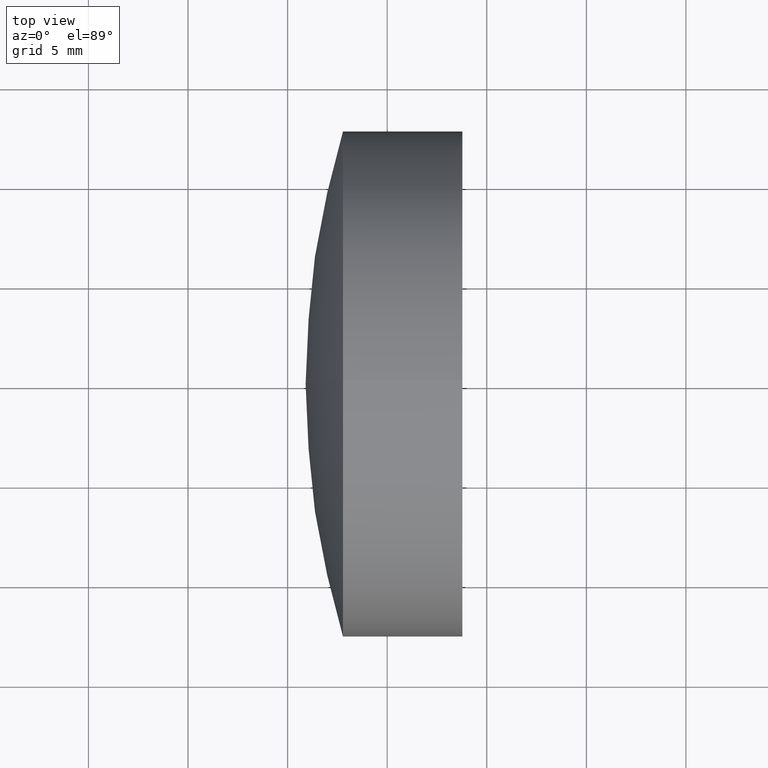
[diagram: clean part render]
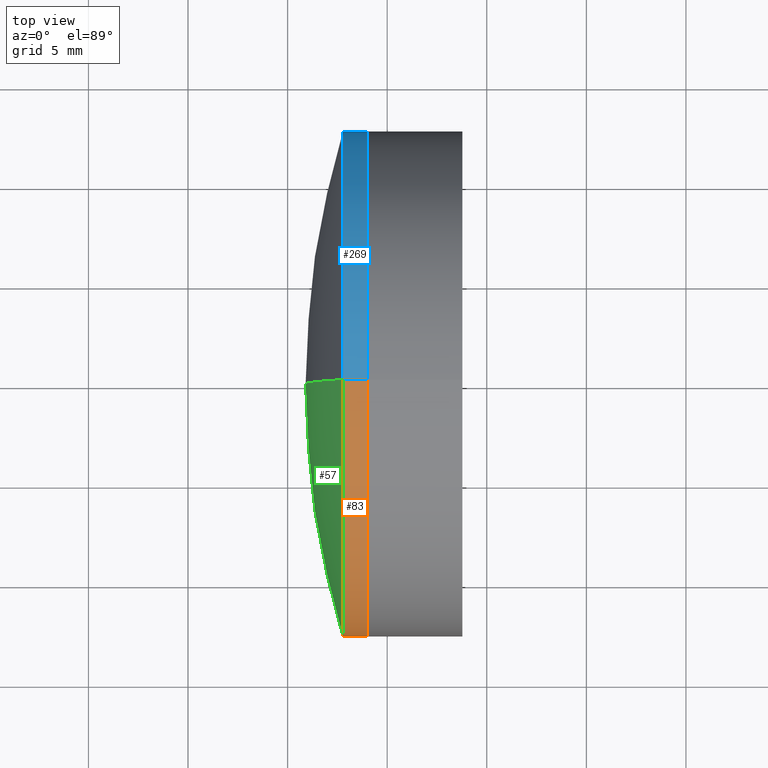
[diagram: same view with three faces highlighted in distinct colors, each labeled with its STEP entity id]
A machine part, top view with three faces highlighted in distinct colors.
Their STEP definitions:

[orange] entity #83 — the highlighted cylindrical surface (partial cylindrical patch) has radius 12.7 mm, axis along (-1, -0, -0).
#3 = VERTEX_POINT ( 'NONE', #249 ) ;
#6 = CIRCLE ( 'NONE', #128, 12.69999999999999600 ) ;
#7 = DIRECTION ( 'NONE',  ( -1.000000000000000000, -0.0000000000000000000, -0.0000000000000000000 ) ) ;
#8 = CARTESIAN_POINT ( 'NONE',  ( 58.98864538849122100, 0.0000000000000000000, 12.69999999999999600 ) ) ;
#15 = VECTOR ( 'NONE', #161, 1000.000000000000000 ) ;
#25 = CARTESIAN_POINT ( 'NONE',  ( 58.98864538849122100, 0.0000000000000000000, 0.0000000000000000000 ) ) ;
#34 = ORIENTED_EDGE ( 'NONE', *, *, #140, .F. ) ;
#73 = VERTEX_POINT ( 'NONE', #8 ) ;
#83 = ADVANCED_FACE ( 'NONE', ( #125 ), #85, .T. ) ;
#85 = CYLINDRICAL_SURFACE ( 'NONE', #259, 12.69999999999999600 ) ;
#89 = CARTESIAN_POINT ( 'NONE',  ( -0.8160621761658039000, 1.555301434917138000E-015, -12.69999999999999600 ) ) ;
#93 = AXIS2_PLACEMENT_3D ( 'NONE', #233, #224, #227 ) ;
#111 = CARTESIAN_POINT ( 'NONE',  ( -0.8160621761658039000, 0.0000000000000000000, 12.69999999999999600 ) ) ;
#119 = VERTEX_POINT ( 'NONE', #277 ) ;
#125 = FACE_OUTER_BOUND ( 'NONE', #299, .T. ) ;
#128 = AXIS2_PLACEMENT_3D ( 'NONE', #25, #302, #197 ) ;
#140 = EDGE_CURVE ( 'NONE', #262, #119, #154, .T. ) ;
#146 = EDGE_CURVE ( 'NONE', #3, #262, #334, .T. ) ;
#154 = CIRCLE ( 'NONE', #93, 12.69999999999999400 ) ;
#161 = DIRECTION ( 'NONE',  ( -1.000000000000000000, -0.0000000000000000000, -0.0000000000000000000 ) ) ;
#164 = DIRECTION ( 'NONE',  ( 0.0000000000000000000, 0.0000000000000000000, 1.000000000000000000 ) ) ;
#166 = EDGE_CURVE ( 'NONE', #3, #73, #6, .T. ) ;
#175 = EDGE_CURVE ( 'NONE', #73, #119, #285, .T. ) ;
#193 = DIRECTION ( 'NONE',  ( -1.000000000000000000, -0.0000000000000000000, -0.0000000000000000000 ) ) ;
#197 = DIRECTION ( 'NONE',  ( 0.0000000000000000000, 0.0000000000000000000, 1.000000000000000000 ) ) ;
#211 = CARTESIAN_POINT ( 'NONE',  ( 57.77907755454032900, 0.0000000000000000000, -12.69999999999997600 ) ) ;
#217 = CARTESIAN_POINT ( 'NONE',  ( -0.8160621761658039000, 0.0000000000000000000, 0.0000000000000000000 ) ) ;
#220 = ORIENTED_EDGE ( 'NONE', *, *, #175, .T. ) ;
#224 = DIRECTION ( 'NONE',  ( -1.000000000000000000, -0.0000000000000000000, -0.0000000000000000000 ) ) ;
#227 = DIRECTION ( 'NONE',  ( 0.0000000000000000000, 0.0000000000000000000, 1.000000000000000000 ) ) ;
#233 = CARTESIAN_POINT ( 'NONE',  ( 57.77907755454032200, 0.0000000000000000000, 0.0000000000000000000 ) ) ;
#249 = CARTESIAN_POINT ( 'NONE',  ( 58.98864538849122100, 1.555301434917138000E-015, -12.69999999999999600 ) ) ;
#259 = AXIS2_PLACEMENT_3D ( 'NONE', #217, #193, #164 ) ;
#262 = VERTEX_POINT ( 'NONE', #211 ) ;
#270 = ORIENTED_EDGE ( 'NONE', *, *, #146, .F. ) ;
#272 = VECTOR ( 'NONE', #7, 1000.000000000000000 ) ;
#277 = CARTESIAN_POINT ( 'NONE',  ( 57.77907755454032900, -1.555301434917135900E-015, 12.69999999999999600 ) ) ;
#285 = LINE ( 'NONE', #111, #15 ) ;
#299 = EDGE_LOOP ( 'NONE', ( #270, #345, #220, #34 ) ) ;
#302 = DIRECTION ( 'NONE',  ( -1.000000000000000000, -0.0000000000000000000, -0.0000000000000000000 ) ) ;
#334 = LINE ( 'NONE', #89, #272 ) ;
#345 = ORIENTED_EDGE ( 'NONE', *, *, #166, .T. ) ;

[blue] entity #269 — the highlighted cylindrical surface (partial cylindrical patch) has radius 12.7 mm, axis along (-1, -0, -0).
#3 = VERTEX_POINT ( 'NONE', #249 ) ;
#7 = DIRECTION ( 'NONE',  ( -1.000000000000000000, -0.0000000000000000000, -0.0000000000000000000 ) ) ;
#8 = CARTESIAN_POINT ( 'NONE',  ( 58.98864538849122100, 0.0000000000000000000, 12.69999999999999600 ) ) ;
#9 = EDGE_CURVE ( 'NONE', #119, #262, #71, .T. ) ;
#15 = VECTOR ( 'NONE', #161, 1000.000000000000000 ) ;
#17 = EDGE_LOOP ( 'NONE', ( #296, #268, #48, #234 ) ) ;
#39 = AXIS2_PLACEMENT_3D ( 'NONE', #169, #42, #304 ) ;
#42 = DIRECTION ( 'NONE',  ( -1.000000000000000000, -0.0000000000000000000, -0.0000000000000000000 ) ) ;
#44 = AXIS2_PLACEMENT_3D ( 'NONE', #244, #81, #133 ) ;
#48 = ORIENTED_EDGE ( 'NONE', *, *, #9, .F. ) ;
#52 = FACE_OUTER_BOUND ( 'NONE', #17, .T. ) ;
#71 = CIRCLE ( 'NONE', #39, 12.69999999999999400 ) ;
#73 = VERTEX_POINT ( 'NONE', #8 ) ;
#76 = AXIS2_PLACEMENT_3D ( 'NONE', #141, #263, #298 ) ;
#81 = DIRECTION ( 'NONE',  ( -1.000000000000000000, -0.0000000000000000000, -0.0000000000000000000 ) ) ;
#89 = CARTESIAN_POINT ( 'NONE',  ( -0.8160621761658039000, 1.555301434917138000E-015, -12.69999999999999600 ) ) ;
#111 = CARTESIAN_POINT ( 'NONE',  ( -0.8160621761658039000, 0.0000000000000000000, 12.69999999999999600 ) ) ;
#118 = CIRCLE ( 'NONE', #44, 12.69999999999999600 ) ;
#119 = VERTEX_POINT ( 'NONE', #277 ) ;
#133 = DIRECTION ( 'NONE',  ( 0.0000000000000000000, 0.0000000000000000000, 1.000000000000000000 ) ) ;
#141 = CARTESIAN_POINT ( 'NONE',  ( -0.8160621761658039000, 0.0000000000000000000, 0.0000000000000000000 ) ) ;
#146 = EDGE_CURVE ( 'NONE', #3, #262, #334, .T. ) ;
#151 = CYLINDRICAL_SURFACE ( 'NONE', #76, 12.69999999999999600 ) ;
#161 = DIRECTION ( 'NONE',  ( -1.000000000000000000, -0.0000000000000000000, -0.0000000000000000000 ) ) ;
#169 = CARTESIAN_POINT ( 'NONE',  ( 57.77907755454032200, 0.0000000000000000000, 0.0000000000000000000 ) ) ;
#175 = EDGE_CURVE ( 'NONE', #73, #119, #285, .T. ) ;
#211 = CARTESIAN_POINT ( 'NONE',  ( 57.77907755454032900, 0.0000000000000000000, -12.69999999999997600 ) ) ;
#234 = ORIENTED_EDGE ( 'NONE', *, *, #175, .F. ) ;
#244 = CARTESIAN_POINT ( 'NONE',  ( 58.98864538849122100, 0.0000000000000000000, 0.0000000000000000000 ) ) ;
#249 = CARTESIAN_POINT ( 'NONE',  ( 58.98864538849122100, 1.555301434917138000E-015, -12.69999999999999600 ) ) ;
#256 = EDGE_CURVE ( 'NONE', #73, #3, #118, .T. ) ;
#262 = VERTEX_POINT ( 'NONE', #211 ) ;
#263 = DIRECTION ( 'NONE',  ( -1.000000000000000000, -0.0000000000000000000, -0.0000000000000000000 ) ) ;
#268 = ORIENTED_EDGE ( 'NONE', *, *, #146, .T. ) ;
#269 = ADVANCED_FACE ( 'NONE', ( #52 ), #151, .T. ) ;
#272 = VECTOR ( 'NONE', #7, 1000.000000000000000 ) ;
#277 = CARTESIAN_POINT ( 'NONE',  ( 57.77907755454032900, -1.555301434917135900E-015, 12.69999999999999600 ) ) ;
#285 = LINE ( 'NONE', #111, #15 ) ;
#296 = ORIENTED_EDGE ( 'NONE', *, *, #256, .T. ) ;
#298 = DIRECTION ( 'NONE',  ( 0.0000000000000000000, 0.0000000000000000000, 1.000000000000000000 ) ) ;
#304 = DIRECTION ( 'NONE',  ( 0.0000000000000000000, 0.0000000000000000000, 1.000000000000000000 ) ) ;
#334 = LINE ( 'NONE', #89, #272 ) ;

[green] entity #57 — the highlighted spherical surface has radius 43.95 mm.
#19 = CARTESIAN_POINT ( 'NONE',  ( 99.85415925380742400, 0.0000000000000000000, 1.870129949146768500E-014 ) ) ;
#28 = CARTESIAN_POINT ( 'NONE',  ( 99.85415925380742400, 0.0000000000000000000, 1.870129949146768500E-014 ) ) ;
#30 = DIRECTION ( 'NONE',  ( 0.0000000000000000000, -1.000000000000000000, -1.224646799147353200E-016 ) ) ;
#35 = DIRECTION ( 'NONE',  ( -0.0000000000000000000, -1.000000000000000000, -0.0000000000000000000 ) ) ;
#46 = AXIS2_PLACEMENT_3D ( 'NONE', #54, #91, #80 ) ;
#54 = CARTESIAN_POINT ( 'NONE',  ( 99.85415925380742400, 0.0000000000000000000, 1.870129949146768500E-014 ) ) ;
#57 = ADVANCED_FACE ( 'NONE', ( #242 ), #195, .T. ) ;
#60 = VERTEX_POINT ( 'NONE', #136 ) ;
#65 = DIRECTION ( 'NONE',  ( 0.0000000000000000000, 0.0000000000000000000, -1.000000000000000000 ) ) ;
#80 = DIRECTION ( 'NONE',  ( 0.0000000000000000000, 0.0000000000000000000, 1.000000000000000000 ) ) ;
#91 = DIRECTION ( 'NONE',  ( 0.0000000000000000000, 1.000000000000000000, -0.0000000000000000000 ) ) ;
#93 = AXIS2_PLACEMENT_3D ( 'NONE', #233, #224, #227 ) ;
#103 = EDGE_LOOP ( 'NONE', ( #206, #109, #105 ) ) ;
#105 = ORIENTED_EDGE ( 'NONE', *, *, #184, .F. ) ;
#109 = ORIENTED_EDGE ( 'NONE', *, *, #330, .T. ) ;
#119 = VERTEX_POINT ( 'NONE', #277 ) ;
#136 = CARTESIAN_POINT ( 'NONE',  ( 55.90415925380741400, 0.0000000000000000000, 1.601013815034137300E-014 ) ) ;
#140 = EDGE_CURVE ( 'NONE', #262, #119, #154, .T. ) ;
#154 = CIRCLE ( 'NONE', #93, 12.69999999999999400 ) ;
#155 = CIRCLE ( 'NONE', #252, 43.95000000000000300 ) ;
#184 = EDGE_CURVE ( 'NONE', #262, #60, #340, .T. ) ;
#195 = SPHERICAL_SURFACE ( 'NONE', #246, 43.95000000000000300 ) ;
#206 = ORIENTED_EDGE ( 'NONE', *, *, #140, .T. ) ;
#211 = CARTESIAN_POINT ( 'NONE',  ( 57.77907755454032900, 0.0000000000000000000, -12.69999999999997600 ) ) ;
#224 = DIRECTION ( 'NONE',  ( -1.000000000000000000, -0.0000000000000000000, -0.0000000000000000000 ) ) ;
#227 = DIRECTION ( 'NONE',  ( 0.0000000000000000000, 0.0000000000000000000, 1.000000000000000000 ) ) ;
#233 = CARTESIAN_POINT ( 'NONE',  ( 57.77907755454032200, 0.0000000000000000000, 0.0000000000000000000 ) ) ;
#242 = FACE_OUTER_BOUND ( 'NONE', #103, .T. ) ;
#246 = AXIS2_PLACEMENT_3D ( 'NONE', #19, #35, #65 ) ;
#251 = DIRECTION ( 'NONE',  ( 0.0000000000000000000, 1.224646799147353200E-016, -1.000000000000000000 ) ) ;
#252 = AXIS2_PLACEMENT_3D ( 'NONE', #28, #30, #251 ) ;
#262 = VERTEX_POINT ( 'NONE', #211 ) ;
#277 = CARTESIAN_POINT ( 'NONE',  ( 57.77907755454032900, -1.555301434917135900E-015, 12.69999999999999600 ) ) ;
#330 = EDGE_CURVE ( 'NONE', #119, #60, #155, .T. ) ;
#340 = CIRCLE ( 'NONE', #46, 43.95000000000000300 ) ;